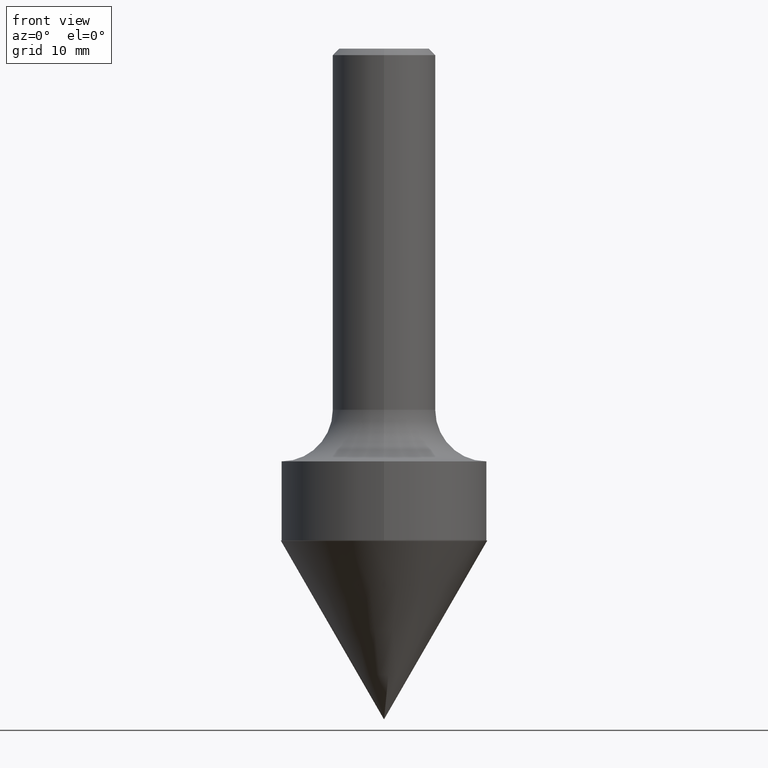
[diagram: clean part render]
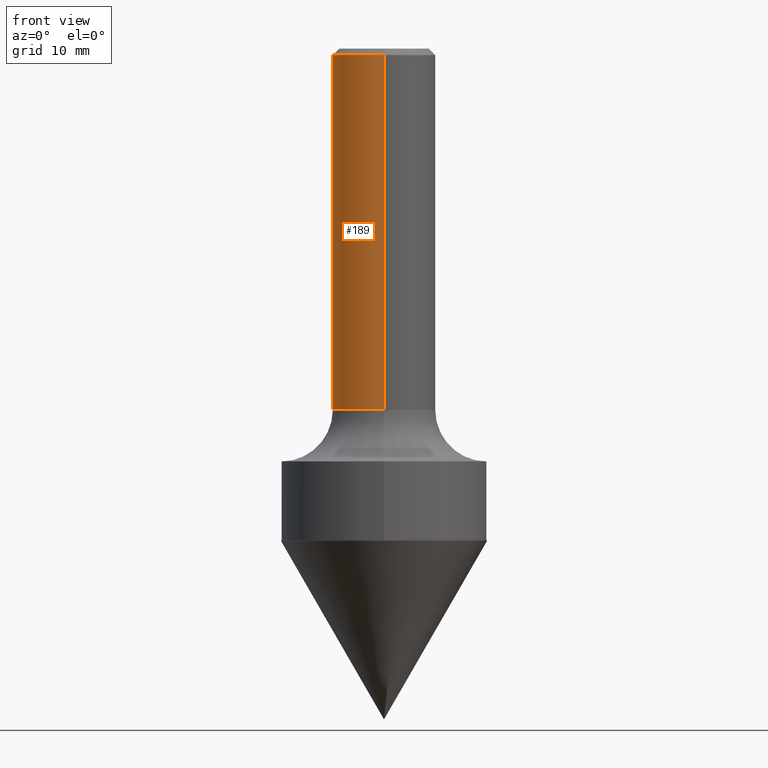
[diagram: same view with one face highlighted and labeled with its STEP entity id]
A machine part, front view. The second image highlights one B-rep face of the part: STEP entity #189.
In plain terms, the highlighted cylindrical surface (partial cylindrical patch) has radius 6.35 mm, axis along (-0, 0, 1).
Its self-contained STEP definition (entity closure, byte-faithful):
#2 = EDGE_CURVE ( 'NONE', #27, #328, #186, .T. ) ;
#19 = DIRECTION ( 'NONE',  ( -6.982962677686265922E-15, -1.000000000000000000, 3.518208477467953618E-15 ) ) ;
#27 = VERTEX_POINT ( 'NONE', #114 ) ;
#32 = DIRECTION ( 'NONE',  ( -2.426805345035298041E-29, 3.518208477467954013E-15, 1.000000000000000000 ) ) ;
#34 = DIRECTION ( 'NONE',  ( -6.982962677686265922E-15, -1.000000000000000000, 3.517254291842738968E-15 ) ) ;
#60 = CARTESIAN_POINT ( 'NONE',  ( -1.745740669421525460E-15, -0.2500000000000063283, -1.749999999999999556 ) ) ;
#69 = ORIENTED_EDGE ( 'NONE', *, *, #2, .F. ) ;
#73 = DIRECTION ( 'NONE',  ( -6.982962677686265133E-15, -1.000000000000000000, 3.278217592397113101E-15 ) ) ;
#86 = VECTOR ( 'NONE', #231, 39.37007874015748143 ) ;
#93 = CIRCLE ( 'NONE', #488, 0.2500000000000000000 ) ;
#99 = EDGE_CURVE ( 'NONE', #311, #393, #237, .T. ) ;
#114 = CARTESIAN_POINT ( 'NONE',  ( 2.664535259100420662E-15, 0.2499999999999940603, -1.750000000000001332 ) ) ;
#128 = DIRECTION ( 'NONE',  ( -2.426805345035298041E-29, 3.518208477467954013E-15, 1.000000000000000000 ) ) ;
#141 = CARTESIAN_POINT ( 'NONE',  ( 7.571632676510179353E-31, -1.097681044970008795E-16, -0.03120000000000020327 ) ) ;
#144 = CARTESIAN_POINT ( 'NONE',  ( 4.246909353811772973E-29, -6.156864835568921297E-15, -1.750000000000000444 ) ) ;
#145 = CARTESIAN_POINT ( 'NONE',  ( 1.776356839400250859E-15, 0.2500000000000001110, -8.795521193669887990E-16 ) ) ;
#149 = DIRECTION ( 'NONE',  ( -2.426805345035298041E-29, 3.518208477467954013E-15, 1.000000000000000000 ) ) ;
#179 = ORIENTED_EDGE ( 'NONE', *, *, #482, .T. ) ;
#186 = LINE ( 'NONE', #145, #327 ) ;
#189 = ADVANCED_FACE ( 'NONE', ( #363 ), #354, .T. ) ;
#231 = DIRECTION ( 'NONE',  ( -2.426805345035298041E-29, 3.518208477467954013E-15, 1.000000000000000000 ) ) ;
#233 = ORIENTED_EDGE ( 'NONE', *, *, #374, .F. ) ;
#237 = LINE ( 'NONE', #263, #86 ) ;
#249 = CARTESIAN_POINT ( 'NONE',  ( 1.745740669421567269E-15, 0.2499999999999998890, -0.03120000000000108104 ) ) ;
#263 = CARTESIAN_POINT ( 'NONE',  ( -1.745740669421567269E-15, -0.2500000000000001110, 8.795521193669887990E-16 ) ) ;
#299 = DIRECTION ( 'NONE',  ( -2.426805345035298041E-29, 3.518208477467954013E-15, 1.000000000000000000 ) ) ;
#311 = VERTEX_POINT ( 'NONE', #60 ) ;
#327 = VECTOR ( 'NONE', #149, 39.37007874015748143 ) ;
#328 = VERTEX_POINT ( 'NONE', #249 ) ;
#354 = CYLINDRICAL_SURFACE ( 'NONE', #457, 0.2500000000000001110 ) ;
#359 = CARTESIAN_POINT ( 'NONE',  ( 0.000000000000000000, 0.000000000000000000, 0.000000000000000000 ) ) ;
#363 = FACE_OUTER_BOUND ( 'NONE', #390, .T. ) ;
#374 = EDGE_CURVE ( 'NONE', #328, #393, #93, .T. ) ;
#384 = ORIENTED_EDGE ( 'NONE', *, *, #99, .T. ) ;
#390 = EDGE_LOOP ( 'NONE', ( #69, #179, #384, #233 ) ) ;
#392 = AXIS2_PLACEMENT_3D ( 'NONE', #144, #32, #73 ) ;
#393 = VERTEX_POINT ( 'NONE', #449 ) ;
#435 = CIRCLE ( 'NONE', #392, 0.2500000000000002220 ) ;
#449 = CARTESIAN_POINT ( 'NONE',  ( -1.715124499442881905E-15, -0.2500000000000001110, -0.03119999999999932203 ) ) ;
#457 = AXIS2_PLACEMENT_3D ( 'NONE', #359, #128, #19 ) ;
#482 = EDGE_CURVE ( 'NONE', #27, #311, #435, .T. ) ;
#488 = AXIS2_PLACEMENT_3D ( 'NONE', #141, #299, #34 ) ;